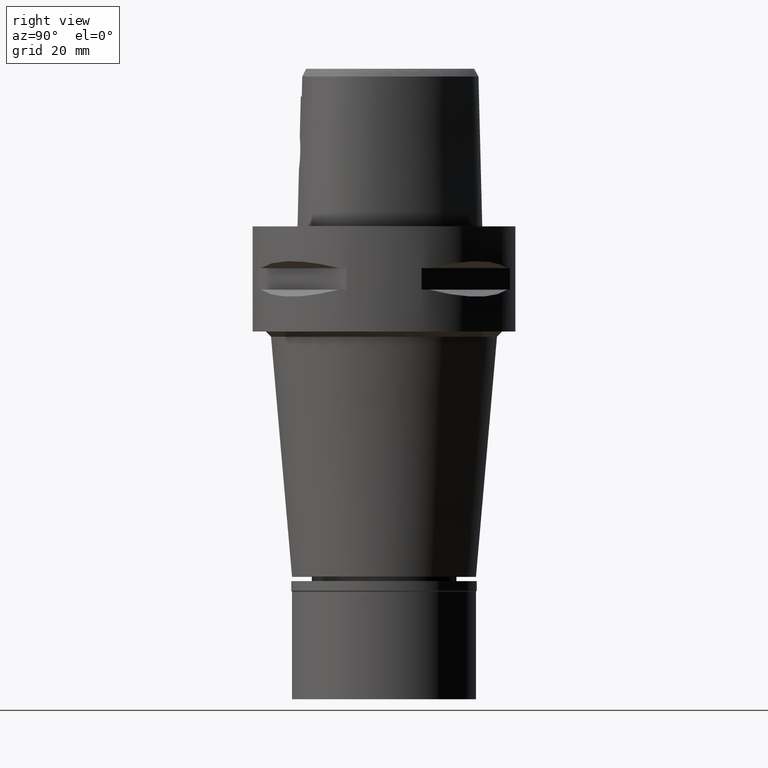
[diagram: clean part render]
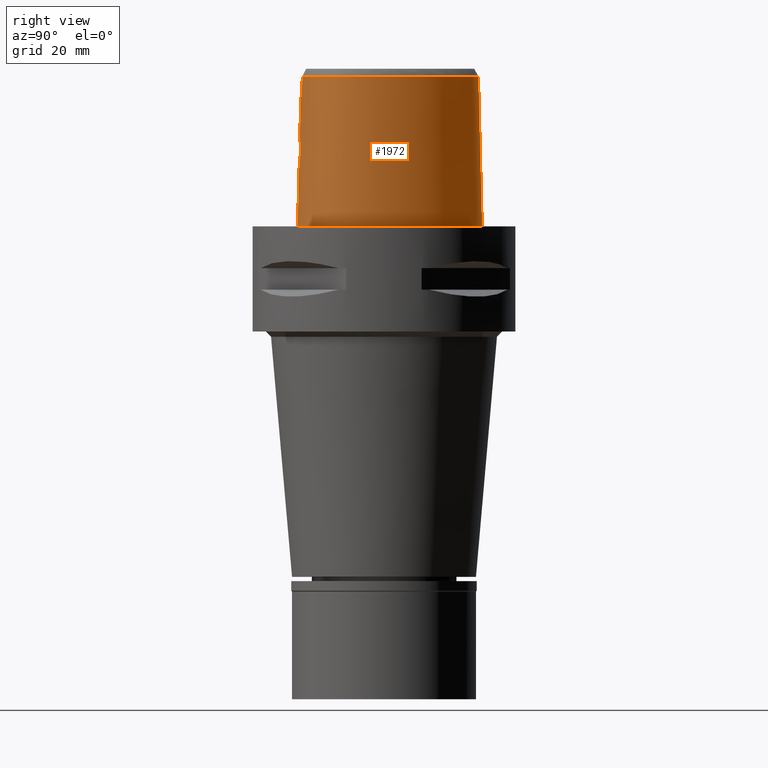
[diagram: same view with one face highlighted and labeled with its STEP entity id]
A machine part, right view. The second image highlights one B-rep face of the part: STEP entity #1972.
In plain terms, the highlighted face is a freeform B-spline surface patch.
Its self-contained STEP definition (entity closure, byte-faithful):
#44 = CARTESIAN_POINT ( 'NONE',  ( 16.06260381016999972, 3.539545240268000104, 19.20397109799000290 ) ) ;
#70 = CARTESIAN_POINT ( 'NONE',  ( 17.72574106728999865, -3.269125760247999946, -0.5704149831085000288 ) ) ;
#98 = CARTESIAN_POINT ( 'NONE',  ( 7.822764680713000907, 15.64590996779000065, 9.316778057439000449 ) ) ;
#104 = EDGE_CURVE ( 'NONE', #3801, #2820, #2988, .T. ) ;
#120 = CARTESIAN_POINT ( 'NONE',  ( 7.668807555354000272, 15.44980294381999997, 19.20397109799000290 ) ) ;
#134 = CARTESIAN_POINT ( 'NONE',  ( 2.744096643845213901, -16.00346064512505606, 12.66698413764603970 ) ) ;
#142 = CARTESIAN_POINT ( 'NONE',  ( 4.416345101437999965, 17.06979537145000236, 29.09116413853000083 ) ) ;
#147 = CARTESIAN_POINT ( 'NONE',  ( 3.213444788215948034, -15.61774735051721308, 25.97357128944999971 ) ) ;
#161 = CARTESIAN_POINT ( 'NONE',  ( 2.709953204667775228, -16.00846021379442519, 12.59958595632848422 ) ) ;
#209 = CARTESIAN_POINT ( 'NONE',  ( 1.306758668653756894, -16.14399373876910460, 11.23972581488055589 ) ) ;
#211 = ORIENTED_EDGE ( 'NONE', *, *, #786, .T. ) ;
#232 = CARTESIAN_POINT ( 'NONE',  ( 4.922186712268000086, -15.43572471317999906, 29.09116413853000083 ) ) ;
#238 = CARTESIAN_POINT ( 'NONE',  ( 1.120763508485726589, -16.15358090583466222, 11.16333240776539171 ) ) ;
#260 = CARTESIAN_POINT ( 'NONE',  ( 1.286803344601999965, -15.75925545528999905, 29.09116413853000083 ) ) ;
#263 = CARTESIAN_POINT ( 'NONE',  ( 2.883981873338817170, -15.93080840504316953, 14.99485968243840972 ) ) ;
#285 = CARTESIAN_POINT ( 'NONE',  ( 0.7741482008191989950, -16.02257322970520903, 16.98085959781949938 ) ) ;
#286 = CARTESIAN_POINT ( 'NONE',  ( -2.099947044190000333E-11, -16.45500000000000185, 1.700491599383999771E-13 ) ) ;
#304 = CARTESIAN_POINT ( 'NONE',  ( 14.25868460834000118, -10.78027775764999951, 29.09116413853000083 ) ) ;
#330 = CARTESIAN_POINT ( 'NONE',  ( 13.36241655669000039, -12.29868522780000006, 9.316778057439000449 ) ) ;
#332 = CARTESIAN_POINT ( 'NONE',  ( 3.032153927794988935, -15.93034332000362419, 14.38503233290865424 ) ) ;
#349 = CARTESIAN_POINT ( 'NONE',  ( 16.70311393326999649, -7.028822804605000307, 19.20397109799000290 ) ) ;
#412 = CARTESIAN_POINT ( 'NONE',  ( 0.4768940199510999789, 18.48195206863000095, 9.316778057439000449 ) ) ;
#413 = VERTEX_POINT ( 'NONE', #967 ) ;
#415 = DIRECTION ( 'NONE',  ( 3.841700118800888517E-12, 0.02499051285785929000, -0.9996876883642715761 ) ) ;
#428 = ORIENTED_EDGE ( 'NONE', *, *, #4589, .F. ) ;
#457 = CARTESIAN_POINT ( 'NONE',  ( 15.82879716901000222, 3.455165066940999896, 29.09116413853000083 ) ) ;
#482 = CARTESIAN_POINT ( 'NONE',  ( 7.976721806072998966, 15.84201699175999778, -0.5704149831085000288 ) ) ;
#487 = CARTESIAN_POINT ( 'NONE',  ( 16.85489147434688206, -5.354527548487546085, 28.52071728562186692 ) ) ;
#502 = CARTESIAN_POINT ( 'NONE',  ( 17.22987906264999936, -3.272349404998999844, 19.20397109799000290 ) ) ;
#514 = CARTESIAN_POINT ( 'NONE',  ( 1.979050802151743005, -16.09313883417978275, 11.67852903115555740 ) ) ;
#529 = CARTESIAN_POINT ( 'NONE',  ( 15.07117004567362351, -9.793013887526788253, 28.52071728562186692 ) ) ;
#570 = CARTESIAN_POINT ( 'NONE',  ( 3.014162081768897661, -15.95399573205362032, 13.52323755265706851 ) ) ;
#625 = CARTESIAN_POINT ( 'NONE',  ( 2.951306861662620129, -15.92924742299003960, 14.77626636585412001 ) ) ;
#644 = CARTESIAN_POINT ( 'NONE',  ( 11.57144723442000078, -13.50085874036000000, 9.316778057439000449 ) ) ;
#687 = CARTESIAN_POINT ( 'NONE',  ( 4.965998056554999707, -15.68039670609000247, 19.20397109799000290 ) ) ;
#692 = CARTESIAN_POINT ( 'NONE',  ( 2.824468722466921378, -15.93300016794371388, 15.15105085638172611 ) ) ;
#716 = CARTESIAN_POINT ( 'NONE',  ( 17.33218217195000221, -5.422849665259000140, 9.316778057439000449 ) ) ;
#759 = CARTESIAN_POINT ( 'NONE',  ( 2.040572359773544786, 18.55015626007492457, -4.092413169139771240E-07 ) ) ;
#776 = CARTESIAN_POINT ( 'NONE',  ( 0.4511781563623000202, 17.98656507930999737, 29.09116413853000083 ) ) ;
#786 = EDGE_CURVE ( 'NONE', #799, #2983, #984, .T. ) ;
#791 = EDGE_CURVE ( 'NONE', #413, #4428, #3048, .T. ) ;
#799 = VERTEX_POINT ( 'NONE', #4471 ) ;
#805 = CARTESIAN_POINT ( 'NONE',  ( -0.5293534872135999825, 17.95181534095999965, 29.09116413853000083 ) ) ;
#812 = CARTESIAN_POINT ( 'NONE',  ( 6.797789558564080774E-08, -15.96503292052179823, 19.60000012629467392 ) ) ;
#826 = CARTESIAN_POINT ( 'NONE',  ( -0.3630720982687000165, 18.20950115322000329, 19.20397109799000290 ) ) ;
#850 = CARTESIAN_POINT ( 'NONE',  ( 2.043508294530000047, 18.56419797690000451, -0.5704149831085000288 ) ) ;
#878 = CARTESIAN_POINT ( 'NONE',  ( 4.628819212283000084, 17.52182784772000090, 9.316778057439000449 ) ) ;
#881 = CARTESIAN_POINT ( 'NONE',  ( 5.902447799197345191, -15.16907841529213918, 28.52071728562186692 ) ) ;
#919 = EDGE_LOOP ( 'NONE', ( #428, #4028, #2835, #4191, #3082, #3013, #970, #211 ) ) ;
#930 = CARTESIAN_POINT ( 'NONE',  ( 11.33338046474596439, -13.08225241901946490, 28.52071728562186692 ) ) ;
#949 = CARTESIAN_POINT ( 'NONE',  ( 2.957688824804170835, -15.96752846870872666, 13.22897551199208444 ) ) ;
#967 = CARTESIAN_POINT ( 'NONE',  ( 2.030224829794000080E-07, -15.83752876601000281, 24.70000006102999990 ) ) ;
#970 = ORIENTED_EDGE ( 'NONE', *, *, #4175, .T. ) ;
#971 = CARTESIAN_POINT ( 'NONE',  ( 0.1898211197316536092, -16.18126839359000257, 10.94999999999999751 ) ) ;
#984 = B_SPLINE_CURVE_WITH_KNOTS ( 'NONE', 3,
 ( #286, #4752, #1369, #2881, #1796, #1420, #3700, #4431, #1048, #2274, #1190, #1913, #2325, #1890, #4206, #1092, #3453, #2672, #4524, #759, #4133, #1563 ),
 .UNSPECIFIED., .F., .F.,
 ( 4, 1, 1, 1, 1, 1, 1, 1, 1, 1, 1, 1, 1, 1, 1, 1, 1, 1, 1, 4 ),
 ( 0.0000000000000000000, 0.08333333333356000849, 0.1666666666668000230, 0.2083333333334000115, 0.2500000000000000000, 0.2916666666666000163, 0.3124999999998999689, 0.3333333333332000326, 0.3541666666665000407, 0.3749999999997999933, 0.4166666666665000407, 0.4583333333330000259, 0.4999999999995999866, 0.5833333333328000192, 0.6666666666660999718, 0.7499999999993000044, 0.8333333333325000369, 0.9166666666657000695, 0.9583333333322999747, 1.000000000000000000 ),
 .UNSPECIFIED. ) ;
#994 = CARTESIAN_POINT ( 'NONE',  ( 2.164021906619611801, -15.96736812113673487, 16.14931344321802698 ) ) ;
#1021 = CARTESIAN_POINT ( 'NONE',  ( 2.180887052763815337, -15.96648089881372989, 16.13220278528724094 ) ) ;
#1043 = CARTESIAN_POINT ( 'NONE',  ( 14.79871908233999989, -11.29217324556000079, -0.5704149831085000288 ) ) ;
#1047 = CARTESIAN_POINT ( 'NONE',  ( 2.232748692361829157, -15.96374470980125082, 16.07819212816551513 ) ) ;
#1048 = CARTESIAN_POINT ( 'NONE',  ( 16.20602472851325970, -9.356552739500257232, -4.092413169139771240E-07 ) ) ;
#1064 = CARTESIAN_POINT ( 'NONE',  ( 1.321318947253999898, -16.50155085332000127, -0.5704149831085000288 ) ) ;
#1068 = CARTESIAN_POINT ( 'NONE',  ( 3.050149896193001364, -15.93316336324772386, 14.18941404704232490 ) ) ;
#1086 = CARTESIAN_POINT ( 'NONE',  ( 16.68217932776000012, -8.451606619630000594, -0.5704149831085000288 ) ) ;
#1091 = CARTESIAN_POINT ( 'NONE',  ( 1.859549321997236992, -15.98255794229956628, 16.41807320997656561 ) ) ;
#1092 = CARTESIAN_POINT ( 'NONE',  ( 14.38008120580503224, 8.302343755140773496, -4.092413169139771240E-07 ) ) ;
#1177 = CARTESIAN_POINT ( 'NONE',  ( 17.47781006497000078, -3.270737582623000073, 9.316778057439000449 ) ) ;
#1178 = VECTOR ( 'NONE', #2212, 1000.000000000000114 ) ;
#1190 = CARTESIAN_POINT ( 'NONE',  ( 17.16495052764897267, -7.165908206046881723, -4.092413169139771240E-07 ) ) ;
#1202 = CARTESIAN_POINT ( 'NONE',  ( 1.890839577661999948, 17.83402817812000052, 29.09116413853000083 ) ) ;
#1223 = CARTESIAN_POINT ( 'NONE',  ( 14.39249255842999986, 8.309508952293001016, -0.5704149831085000288 ) ) ;
#1226 = CARTESIAN_POINT ( 'NONE',  ( 4.422474504766046977, 17.08283549833119608, 28.52071728562186692 ) ) ;
#1245 = CARTESIAN_POINT ( 'NONE',  ( -0.5743166387467999456, 18.69191974542000168, -0.5704149831085000288 ) ) ;
#1249 = CARTESIAN_POINT ( 'NONE',  ( 8.702202469521795436, -14.36510984286243797, 28.52071728562186692 ) ) ;
#1267 = CARTESIAN_POINT ( 'NONE',  ( 3.235096591086000117, -15.64751801257999908, 24.70000006080999810 ) ) ;
#1277 = CARTESIAN_POINT ( 'NONE',  ( 3.168920890822999770, -15.55911073834000113, 28.52071374672999582 ) ) ;
#1296 = EDGE_CURVE ( 'NONE', #3801, #413, #4001, .T. ) ;
#1310 = CARTESIAN_POINT ( 'NONE',  ( 2.223227574825688890, -16.06911398227925147, 11.90960399256265134 ) ) ;
#1334 = CARTESIAN_POINT ( 'NONE',  ( -3.009969613578000157E-11, 17.98202997909999823, 28.52071728569000086 ) ) ;
#1339 = CARTESIAN_POINT ( 'NONE',  ( 3.044506884776514433, -15.94333381584075582, 13.81108558313461110 ) ) ;
#1368 = CARTESIAN_POINT ( 'NONE',  ( 2.147962331140050196, -16.07679769526338021, 11.83463701146479075 ) ) ;
#1369 = CARTESIAN_POINT ( 'NONE',  ( 5.051093169386433601, -16.15562501012858476, -4.092413169139771240E-07 ) ) ;
#1388 = CARTESIAN_POINT ( 'NONE',  ( -0.7074880616520999865, -15.72098075040999632, 29.09116413853000083 ) ) ;
#1414 = CARTESIAN_POINT ( 'NONE',  ( 11.32630876774000050, -13.06981785256000173, 29.09116413853000083 ) ) ;
#1419 = CARTESIAN_POINT ( 'NONE',  ( 2.262444582314412145, -15.96216938760131754, 16.04565077979857080 ) ) ;
#1420 = CARTESIAN_POINT ( 'NONE',  ( 13.50690094114342621, -12.48264649245455971, -4.092413169139771240E-07 ) ) ;
#1441 = CARTESIAN_POINT ( 'NONE',  ( 15.25987586200999857, -9.930205206822000363, 19.20397109799000290 ) ) ;
#1444 = B_SPLINE_CURVE_WITH_KNOTS ( 'NONE', 3,
 ( #3529, #971, #2086, #3580, #1697, #3555, #2798, #4303, #238, #3260, #4751, #4329, #209, #1747, #1673, #3202, #4694, #514, #3228, #2482, #3177, #2429, #4645, #1368, #1310, #3606, #3915, #4377, #3968, #2821, #161, #134, #1641, #3147, #4672, #2776, #949, #570, #4282, #4723, #1339, #2136, #4452, #1068, #332, #3750, #625, #3657, #263, #1826, #4797, #4844, #692, #2935, #1773, #2977, #2600, #4430, #2573, #2903, #1419, #1047, #4113, #1021, #2506, #994, #2957, #4044, #3728, #1091, #1446, #4086, #2553, #2208, #4017, #1467, #4772, #1848, #285, #3285, #4065 ),
 .UNSPECIFIED., .F., .F.,
 ( 4, 2, 2, 1, 1, 1, 2, 2, 2, 2, 2, 1, 1, 2, 2, 2, 2, 2, 1, 2, 2, 2, 2, 2, 2, 2, 2, 1, 1, 1, 2, 2, 2, 2, 2, 1, 1, 2, 2, 2, 2, 2, 2, 2, 2, 4 ),
 ( 0.0000000000000000000, 0.06249999999999249212, 0.09374999999998873124, 0.1093749999999868439, 0.1171874999999859140, 0.1210937499999853589, 0.1230468749999851785, 0.1249999999999849842, 0.1874999999999826805, 0.2187499999999815148, 0.2343749999999809874, 0.2421874999999808487, 0.2460937499999807654, 0.2480468749999807376, 0.2499999999999807376, 0.2812499999999806821, 0.3124999999999806821, 0.3437499999999806266, 0.3593749999999806266, 0.3671874999999803491, 0.3749999999999800715, 0.4374999999999770739, 0.4687499999999756306, 0.4843749999999751310, 0.4999999999999745759, 0.5624999999999720224, 0.5937499999999705791, 0.6093749999999700240, 0.6171874999999699130, 0.6210937499999696909, 0.6230468749999695799, 0.6249999999999694689, 0.6874999999999721334, 0.7187499999999732436, 0.7343749999999737987, 0.7421874999999745759, 0.7460937499999750200, 0.7480468749999749090, 0.7499999999999746869, 0.7812499999999785727, 0.7968749999999801270, 0.8124999999999816813, 0.8437499999999847899, 0.8593749999999861222, 0.8749999999999874545, 1.000000000000000000 ),
 .UNSPECIFIED. ) ;
#1446 = CARTESIAN_POINT ( 'NONE',  ( 1.779262221764184249, -15.98633376436653108, 16.47774649146144554 ) ) ;
#1463 = CARTESIAN_POINT ( 'NONE',  ( 15.78948609236000067, -9.116064045091000878, 19.20397109799000290 ) ) ;
#1467 = CARTESIAN_POINT ( 'NONE',  ( 1.354452607727719471, -16.00396228356807526, 16.73322745257438982 ) ) ;
#1478 = VERTEX_POINT ( 'NONE', #4547 ) ;
#1485 = CARTESIAN_POINT ( 'NONE',  ( 16.22974790713000104, -8.250337555777999654, 19.20397109799000290 ) ) ;
#1550 = CARTESIAN_POINT ( 'NONE',  ( 16.53021709249000182, 3.708305586923000163, -0.5704149831085000288 ) ) ;
#1563 = CARTESIAN_POINT ( 'NONE',  ( 7.950257691411000298E-11, 18.69499999997999851, 1.688279146112999860E-13 ) ) ;
#1580 = CARTESIAN_POINT ( 'NONE',  ( 17.26695525566999834, -0.2694874902618000223, 9.316778057439000449 ) ) ;
#1628 = CARTESIAN_POINT ( 'NONE',  ( 0.4640360881566999995, 18.23425857396999916, 19.20397109799000290 ) ) ;
#1631 = CARTESIAN_POINT ( 'NONE',  ( 16.47905536661016512, -6.962316254603442722, 28.52071728562186692 ) ) ;
#1641 = CARTESIAN_POINT ( 'NONE',  ( 2.775961287962938506, -15.99857004330712229, 12.73620107527709600 ) ) ;
#1644 = VERTEX_POINT ( 'NONE', #1334 ) ;
#1656 = CARTESIAN_POINT ( 'NONE',  ( 0.6295828025434362374, 17.98202997637834955, 28.52071728562186692 ) ) ;
#1673 = CARTESIAN_POINT ( 'NONE',  ( 1.719191830005427191, -16.11523926597614675, 11.47872671522449473 ) ) ;
#1697 = CARTESIAN_POINT ( 'NONE',  ( 0.7748558813734508499, -16.16821842566323042, 11.04831638025727614 ) ) ;
#1741 = CARTESIAN_POINT ( 'NONE',  ( 8.951632343383998602, -15.05250172444999990, -0.5704149831085000288 ) ) ;
#1747 = CARTESIAN_POINT ( 'NONE',  ( 1.466707760567599550, -16.13401281180740199, 11.31839107164914182 ) ) ;
#1773 = CARTESIAN_POINT ( 'NONE',  ( 2.759961640973259467, -15.93564958624567929, 15.30749493561488173 ) ) ;
#1796 = CARTESIAN_POINT ( 'NONE',  ( 11.68694517090980867, -13.70394532141715338, -4.092413169139771240E-07 ) ) ;
#1821 = CARTESIAN_POINT ( 'NONE',  ( 15.66039569940999954, -10.22138777850999958, -0.5704149831085000288 ) ) ;
#1826 = CARTESIAN_POINT ( 'NONE',  ( 2.852909278454516251, -15.93189406616820847, 15.07915126970513953 ) ) ;
#1848 = CARTESIAN_POINT ( 'NONE',  ( 1.217867162102865830, -16.00861105600193213, 16.79681041045230572 ) ) ;
#1865 = CARTESIAN_POINT ( 'NONE',  ( 15.57503056149000109, -8.992248086250999251, 29.09116413853000083 ) ) ;
#1890 = CARTESIAN_POINT ( 'NONE',  ( 17.49754713320569977, -0.2285937482037112278, -4.092413169139771240E-07 ) ) ;
#1913 = CARTESIAN_POINT ( 'NONE',  ( 17.56373943949967398, -5.455996095205096097, -4.092413169139771240E-07 ) ) ;
#1924 = CARTESIAN_POINT ( 'NONE',  ( -0.3829342216691000167, 18.70352949967000100, -0.5704149831085000288 ) ) ;
#1945 = CARTESIAN_POINT ( 'NONE',  ( 16.84071370731999906, -5.352498061930999640, 29.09116413853000083 ) ) ;
#1972 = ADVANCED_FACE ( 'NONE', ( #3674 ), #2171, .T. ) ;
#1973 = CARTESIAN_POINT ( 'NONE',  ( 13.74710175889000041, 7.936918433065000222, 29.09116413853000083 ) ) ;
#1998 = CARTESIAN_POINT ( 'NONE',  ( 16.98194806033000148, -3.273961227375000060, 29.09116413853000083 ) ) ;
#2001 = CARTESIAN_POINT ( 'NONE',  ( 16.79165444019614739, -0.3537785292841507112, 28.52071728562186692 ) ) ;
#2019 = CARTESIAN_POINT ( 'NONE',  ( 11.47659489054000126, 12.46143685312999949, -0.5704149831085000288 ) ) ;
#2027 = CARTESIAN_POINT ( 'NONE',  ( 3.168920890822999770, -15.55911073834000113, 28.52071374672999582 ) ) ;
#2049 = CARTESIAN_POINT ( 'NONE',  ( 3.168920890822999770, -15.55911073834000113, 28.52071374672999582 ) ) ;
#2086 = CARTESIAN_POINT ( 'NONE',  ( 0.3842297570296561160, -16.17878268541347353, 10.96777226348764600 ) ) ;
#2136 = CARTESIAN_POINT ( 'NONE',  ( 3.048883421515428349, -15.94046337244651923, 13.90502257973829003 ) ) ;
#2155 = CARTESIAN_POINT ( 'NONE',  ( -1.079551357071999895, -16.20136632400999943, 9.316778057439000449 ) ) ;
#2171 = B_SPLINE_SURFACE_WITH_KNOTS ( 'NONE', 3, 3, ( 
 ( #3302, #2155, #4040, #2176 ),
 ( #2975, #3724, #4373, #1388 ),
 ( #1064, #3696, #2877, #260 ),
 ( #2900, #4468, #687, #232 ),
 ( #1741, #2202, #4396, #4823 ),
 ( #2528, #644, #2952, #1414 ),
 ( #2928, #330, #4062, #4425 ),
 ( #1043, #4448, #2550, #304 ),
 ( #1821, #3331, #1441, #2570 ),
 ( #3353, #4841, #1463, #1865 ),
 ( #1086, #3748, #1485, #3373 ),
 ( #2998, #4862, #349, #4111 ),
 ( #2594, #716, #2229, #1945 ),
 ( #70, #1177, #502, #1998 ),
 ( #4585, #1580, #3808, #3829 ),
 ( #1550, #3059, #44, #457 ),
 ( #1223, #3444, #3495, #1973 ),
 ( #2019, #3518, #3901, #3879 ),
 ( #482, #98, #120, #4198 ),
 ( #3464, #878, #3538, #142 ),
 ( #850, #2758, #2317, #1202 ),
 ( #4625, #412, #1628, #776 ),
 ( #1924, #3132, #826, #2732 ),
 ( #1245, #4607, #2340, #805 ) ),
 .UNSPECIFIED., .F., .F., .F.,
 ( 4, 1, 1, 1, 1, 1, 1, 1, 1, 1, 1, 1, 1, 1, 1, 1, 1, 1, 1, 1, 1, 4 ),
 ( 4, 4 ),
 ( -0.01796851319151000076, 0.0000000000000000000, 0.08333333333356000849, 0.1666666666668000230, 0.2083333333334000115, 0.2500000000000000000, 0.2916666666666000163, 0.3124999999998999689, 0.3333333333332000326, 0.3541666666665000407, 0.3749999999997999933, 0.4166666666665000407, 0.4583333333330000259, 0.4999999999995999866, 0.5833333333328000192, 0.6666666666660999718, 0.7499999999993000044, 0.8333333333325000369, 0.9166666666657000695, 0.9583333333322999747, 1.000000000000000000, 1.011711214084999977 ),
 ( -8.523015300466000007E-09, 1.000000434673999905 ),
 .UNSPECIFIED. ) ;
#2176 = CARTESIAN_POINT ( 'NONE',  ( -1.060560745279999884, -15.70738051947000180, 29.09116413853000083 ) ) ;
#2202 = CARTESIAN_POINT ( 'NONE',  ( 8.866858698611999046, -14.81887808391999961, 9.316778057439000449 ) ) ;
#2208 = CARTESIAN_POINT ( 'NONE',  ( 1.531589067142498539, -15.99732691922906724, 16.63945844436470267 ) ) ;
#2212 = DIRECTION ( 'NONE',  ( -1.678645996367960835E-12, -0.02499051295371941192, -0.9996876883618752707 ) ) ;
#2229 = CARTESIAN_POINT ( 'NONE',  ( 17.08644793963999930, -5.387673863595000334, 19.20397109799000290 ) ) ;
#2246 = LINE ( 'NONE', #3468, #4651 ) ;
#2274 = CARTESIAN_POINT ( 'NONE',  ( 16.66912843075925821, -8.445800785415022105, -4.092413169139771240E-07 ) ) ;
#2317 = CARTESIAN_POINT ( 'NONE',  ( 1.941729149950999878, 18.07741811105000096, 19.20397109799000290 ) ) ;
#2325 = CARTESIAN_POINT ( 'NONE',  ( 17.71143736587981365, -3.269218749933689327, -4.092413169139771240E-07 ) ) ;
#2340 = CARTESIAN_POINT ( 'NONE',  ( -0.5443412043912999598, 18.19851680912000091, 19.20397109799000290 ) ) ;
#2377 = CARTESIAN_POINT ( 'NONE',  ( 2.030224829794000080E-07, -15.83752876601000281, 24.70000006102999990 ) ) ;
#2397 = CARTESIAN_POINT ( 'NONE',  ( 3.738627708319397502, -15.49270856215321679, 28.52071728562186692 ) ) ;
#2398 = CARTESIAN_POINT ( 'NONE',  ( 3.235096591086000117, -15.64751801257999908, 24.70000006080999810 ) ) ;
#2420 = CARTESIAN_POINT ( 'NONE',  ( 3.235096591086000117, -15.64751801257999908, 24.70000006080999810 ) ) ;
#2429 = CARTESIAN_POINT ( 'NONE',  ( 2.130834279644791440, -16.07853149005615023, 11.81777582520527936 ) ) ;
#2430 = EDGE_CURVE ( 'NONE', #1478, #4428, #1444, .T. ) ;
#2441 = B_SPLINE_CURVE_WITH_KNOTS ( 'NONE', 3,
 ( #4292, #1656, #3926, #1226, #3521, #3883, #2808, #3115, #2001, #2786, #487, #1631, #2763, #3980, #529, #4629, #3954, #930, #1249, #881, #2397, #2049 ),
 .UNSPECIFIED., .F., .F.,
 ( 4, 1, 1, 1, 1, 1, 1, 1, 1, 1, 1, 1, 1, 1, 1, 1, 1, 1, 1, 4 ),
 ( 0.0000000000000000000, 0.04404152929334257532, 0.08808305858552231693, 0.1761661171698820638, 0.2642491757542417830, 0.3523322343386015021, 0.4404152929230668589, 0.5284983515074266336, 0.5725398807996064932, 0.6165814100916805485, 0.6606229393839662123, 0.6826437040300560311, 0.7046644686761459608, 0.7266852333222358906, 0.7487059979683258204, 0.7927475272605056800, 0.8367890565526855395, 0.8808305858448653991, 0.9689136444292674177, 1.000000000000000000 ),
 .UNSPECIFIED. ) ;
#2482 = CARTESIAN_POINT ( 'NONE',  ( 2.076784380856327772, -16.08390063340897314, 11.76594178763888010 ) ) ;
#2506 = CARTESIAN_POINT ( 'NONE',  ( 2.170299400654049027, -15.96703807926082597, 16.14297866672072246 ) ) ;
#2528 = CARTESIAN_POINT ( 'NONE',  ( 11.69401646775999914, -13.71637918426000091, -0.5704149831085000288 ) ) ;
#2550 = CARTESIAN_POINT ( 'NONE',  ( 14.43869609967999956, -10.95090958695999994, 19.20397109799000290 ) ) ;
#2553 = CARTESIAN_POINT ( 'NONE',  ( 1.616099766049515107, -15.99381337938741332, 16.58846643699800083 ) ) ;
#2570 = CARTESIAN_POINT ( 'NONE',  ( 15.05961594332000075, -9.784613920976001467, 29.09116413853000083 ) ) ;
#2573 = CARTESIAN_POINT ( 'NONE',  ( 2.356615372638850125, -15.95714923954085585, 15.93698914121854671 ) ) ;
#2594 = CARTESIAN_POINT ( 'NONE',  ( 17.57791640427000246, -5.458025466921999858, -0.5704149831085000288 ) ) ;
#2600 = CARTESIAN_POINT ( 'NONE',  ( 2.520317714005605225, -15.94834054842958793, 15.72060082174885132 ) ) ;
#2601 = CARTESIAN_POINT ( 'NONE',  ( 0.0000000000000000000, -16.02877864023999877, 17.05000000000000071 ) ) ;
#2672 = CARTESIAN_POINT ( 'NONE',  ( 7.967839670597755664, 15.83070313310956934, -4.092413169139771240E-07 ) ) ;
#2732 = CARTESIAN_POINT ( 'NONE',  ( -0.3531410365684999886, 17.96248698000000132, 29.09116413853000083 ) ) ;
#2758 = CARTESIAN_POINT ( 'NONE',  ( 1.992618722240999896, 18.32080804398000140, 9.316778057439000449 ) ) ;
#2763 = CARTESIAN_POINT ( 'NONE',  ( 16.01658383235454508, -8.155509186612755812, 28.52071728562186692 ) ) ;
#2767 = CARTESIAN_POINT ( 'NONE',  ( 2.169052010909937156, -15.77399788591446850, 24.70000016056458847 ) ) ;
#2776 = CARTESIAN_POINT ( 'NONE',  ( 2.899217746531571827, -15.97873758491098073, 13.02871175161756234 ) ) ;
#2786 = CARTESIAN_POINT ( 'NONE',  ( 16.99625257116860411, -3.273868232427084468, 28.52071728562186692 ) ) ;
#2798 = CARTESIAN_POINT ( 'NONE',  ( 0.9939297242844374880, -16.15959612542589241, 11.11569146158231014 ) ) ;
#2808 = CARTESIAN_POINT ( 'NONE',  ( 13.75951381385775996, 7.944084035686641343, 28.52071728562186692 ) ) ;
#2820 = VERTEX_POINT ( 'NONE', #2027 ) ;
#2821 = CARTESIAN_POINT ( 'NONE',  ( 2.638828814086502383, -16.01860464026841413, 12.46732066277610862 ) ) ;
#2835 = ORIENTED_EDGE ( 'NONE', *, *, #104, .F. ) ;
#2877 = CARTESIAN_POINT ( 'NONE',  ( 1.298308545485999943, -16.00668725462999831, 19.20397109799000290 ) ) ;
#2881 = CARTESIAN_POINT ( 'NONE',  ( 8.946741559694485701, -15.03902344716627226, -4.092413169139771240E-07 ) ) ;
#2900 = CARTESIAN_POINT ( 'NONE',  ( 5.053620745127998859, -16.16974069189999952, -0.5704149831085000288 ) ) ;
#2903 = CARTESIAN_POINT ( 'NONE',  ( 2.320231428406520191, -15.95909571851455233, 15.98050410814317424 ) ) ;
#2928 = CARTESIAN_POINT ( 'NONE',  ( 13.51574691712999865, -12.49390941845000036, -0.5704149831085000288 ) ) ;
#2935 = CARTESIAN_POINT ( 'NONE',  ( 2.821425036078518467, -15.93312409536605578, 15.15848376097718031 ) ) ;
#2952 = CARTESIAN_POINT ( 'NONE',  ( 11.44887800108000064, -13.28533829645999909, 19.20397109799000290 ) ) ;
#2957 = CARTESIAN_POINT ( 'NONE',  ( 2.088968113521979753, -15.97131126311716898, 16.22457167555463542 ) ) ;
#2975 = CARTESIAN_POINT ( 'NONE',  ( -0.7264497210150000495, -16.46229666708999773, -0.5704149831085000288 ) ) ;
#2977 = CARTESIAN_POINT ( 'NONE',  ( 2.681016418395044898, -15.93974068711152547, 15.46783011061541302 ) ) ;
#2983 = VERTEX_POINT ( 'NONE', #4637 ) ;
#2988 = B_SPLINE_CURVE_WITH_KNOTS ( 'NONE', 3,
 ( #2398, #147, #3167, #1277 ),
 .UNSPECIFIED., .F., .F.,
 ( 4, 4 ),
 ( 0.0000000000000000000, 1.000000000000000000 ),
 .UNSPECIFIED. ) ;
#2998 = CARTESIAN_POINT ( 'NONE',  ( 17.17866843615999883, -7.169980046645999749, -0.5704149831085000288 ) ) ;
#3013 = ORIENTED_EDGE ( 'NONE', *, *, #2430, .F. ) ;
#3048 = B_SPLINE_CURVE_WITH_KNOTS ( 'NONE', 3,
 ( #3837, #3404, #812, #2601 ),
 .UNSPECIFIED., .F., .F.,
 ( 4, 4 ),
 ( 0.0000000000000000000, 1.000000000000000000 ),
 .UNSPECIFIED. ) ;
#3059 = CARTESIAN_POINT ( 'NONE',  ( 16.29641045132999722, 3.623925413595000311, 9.316778057439000449 ) ) ;
#3082 = ORIENTED_EDGE ( 'NONE', *, *, #791, .T. ) ;
#3115 = CARTESIAN_POINT ( 'NONE',  ( 15.84228676733096641, 3.460033425849828870, 28.52071728562186692 ) ) ;
#3132 = CARTESIAN_POINT ( 'NONE',  ( -0.3730031599688999888, 18.45651532644999904, 9.316778057439000449 ) ) ;
#3147 = CARTESIAN_POINT ( 'NONE',  ( 2.796681338616599621, -15.99533385695102439, 12.78273984513034378 ) ) ;
#3167 = CARTESIAN_POINT ( 'NONE',  ( 3.191384142201736829, -15.58827398948734633, 27.24714251809000132 ) ) ;
#3177 = CARTESIAN_POINT ( 'NONE',  ( 2.114644142900159896, -16.08015782783995817, 11.80200641014588747 ) ) ;
#3202 = CARTESIAN_POINT ( 'NONE',  ( 1.805376232578070450, -16.10834772480095012, 11.53923680359284809 ) ) ;
#3228 = CARTESIAN_POINT ( 'NONE',  ( 2.044225401069980741, -16.08701963945120994, 11.73626748625383343 ) ) ;
#3260 = CARTESIAN_POINT ( 'NONE',  ( 1.138812104614844278, -16.15267061231297419, 11.17057442770713394 ) ) ;
#3277 = CARTESIAN_POINT ( 'NONE',  ( 0.0000000000000000000, -16.02877864023999877, 17.05000000000000071 ) ) ;
#3285 = CARTESIAN_POINT ( 'NONE',  ( 0.3724840145390415080, -16.02877864024000587, 17.04999999999999716 ) ) ;
#3302 = CARTESIAN_POINT ( 'NONE',  ( -1.089046662969000101, -16.44835922628000091, -0.5704149831085000288 ) ) ;
#3331 = CARTESIAN_POINT ( 'NONE',  ( 15.46013578071000083, -10.07579649266999944, 9.316778057439000449 ) ) ;
#3353 = CARTESIAN_POINT ( 'NONE',  ( 16.21839715411000071, -9.363695962769998715, -0.5704149831085000288 ) ) ;
#3373 = CARTESIAN_POINT ( 'NONE',  ( 16.00353219682000017, -8.149703023852998385, 29.09116413853000083 ) ) ;
#3404 = CARTESIAN_POINT ( 'NONE',  ( 6.782268596442595003E-08, -15.90128720080194391, 22.15000025258929028 ) ) ;
#3444 = CARTESIAN_POINT ( 'NONE',  ( 14.17736229192000152, 8.185312112550001018, 9.316778057439000449 ) ) ;
#3453 = CARTESIAN_POINT ( 'NONE',  ( 11.46563508809787635, 12.45218750664109209, -4.092413169139771240E-07 ) ) ;
#3464 = CARTESIAN_POINT ( 'NONE',  ( 4.735056267705000543, 17.74784408584999795, -0.5704149831085000288 ) ) ;
#3468 = CARTESIAN_POINT ( 'NONE',  ( -3.009969613578000157E-11, 17.98202997909999823, 28.52071728569000086 ) ) ;
#3495 = CARTESIAN_POINT ( 'NONE',  ( 13.96223202539999875, 8.061115272806999243, 19.20397109799000290 ) ) ;
#3518 = CARTESIAN_POINT ( 'NONE',  ( 11.28662484525000131, 12.30111473230000030, 9.316778057439000449 ) ) ;
#3521 = CARTESIAN_POINT ( 'NONE',  ( 7.523733068099031307, 15.26501041873741826, 28.52071728562186692 ) ) ;
#3529 = CARTESIAN_POINT ( 'NONE',  ( -2.612554333772000266E-12, -16.18126839358999902, 10.94999999999999929 ) ) ;
#3538 = CARTESIAN_POINT ( 'NONE',  ( 4.522582156860000424, 17.29581160957999941, 19.20397109799000290 ) ) ;
#3555 = CARTESIAN_POINT ( 'NONE',  ( 0.9209982704608615789, -16.16262558226604895, 11.09193420934167129 ) ) ;
#3580 = CARTESIAN_POINT ( 'NONE',  ( 0.6770584128688731385, -16.17132556088388995, 11.02443681068121784 ) ) ;
#3606 = CARTESIAN_POINT ( 'NONE',  ( 2.290593162243966141, -16.06186194956454116, 11.98364703425937350 ) ) ;
#3657 = CARTESIAN_POINT ( 'NONE',  ( 2.907704111751937770, -15.93016185020670861, 14.92213459652817953 ) ) ;
#3674 = FACE_OUTER_BOUND ( 'NONE', #919, .T. ) ;
#3696 = CARTESIAN_POINT ( 'NONE',  ( 1.309813746370000143, -16.25411905398000201, 9.316778057439000449 ) ) ;
#3700 = CARTESIAN_POINT ( 'NONE',  ( 14.78833381144490389, -11.28232910862455363, -4.092413169139771240E-07 ) ) ;
#3724 = CARTESIAN_POINT ( 'NONE',  ( -0.7201291678940000551, -16.21519136152999607, 9.316778057439000449 ) ) ;
#3728 = CARTESIAN_POINT ( 'NONE',  ( 1.898958778535287273, -15.98067541706731731, 16.38724889510308103 ) ) ;
#3748 = CARTESIAN_POINT ( 'NONE',  ( 16.45596361744999925, -8.350972087704001012, 9.316778057439000449 ) ) ;
#3750 = CARTESIAN_POINT ( 'NONE',  ( 2.975249651912823534, -15.92914271478721844, 14.67846616982687102 ) ) ;
#3801 = VERTEX_POINT ( 'NONE', #1267 ) ;
#3808 = CARTESIAN_POINT ( 'NONE',  ( 17.02224551882000014, -0.3128849289070000372, 19.20397109799000290 ) ) ;
#3829 = CARTESIAN_POINT ( 'NONE',  ( 16.77753578197999929, -0.3562823675523000277, 29.09116413853000083 ) ) ;
#3837 = CARTESIAN_POINT ( 'NONE',  ( 2.030224829794000080E-07, -15.83752876601000281, 24.70000006102999990 ) ) ;
#3879 = CARTESIAN_POINT ( 'NONE',  ( 10.90668475468999965, 11.98047049064000014, 29.09116413853000083 ) ) ;
#3883 = CARTESIAN_POINT ( 'NONE',  ( 10.91764517733295214, 11.98972036053776158, 28.52071728562186692 ) ) ;
#3901 = CARTESIAN_POINT ( 'NONE',  ( 11.09665479997000048, 12.14079261146999933, 19.20397109799000290 ) ) ;
#3915 = CARTESIAN_POINT ( 'NONE',  ( 2.417729193041619151, -16.04731727844056266, 12.13798983179893654 ) ) ;
#3926 = CARTESIAN_POINT ( 'NONE',  ( 1.893775678555476460, 17.84807068954984999, 28.52071728562186692 ) ) ;
#3954 = CARTESIAN_POINT ( 'NONE',  ( 13.06460231237919700, -11.91950040983078196, 28.52071728562186692 ) ) ;
#3968 = CARTESIAN_POINT ( 'NONE',  ( 2.587629427706295893, -16.02556131009806606, 12.38252332209277462 ) ) ;
#3980 = CARTESIAN_POINT ( 'NONE',  ( 15.58740368722670055, -8.999391713746737409, 28.52071728562186692 ) ) ;
#4001 = B_SPLINE_CURVE_WITH_KNOTS ( 'NONE', 3,
 ( #2420, #2767, #4274, #2377 ),
 .UNSPECIFIED., .F., .F.,
 ( 4, 4 ),
 ( 0.0000000000000000000, 1.000000000000000000 ),
 .UNSPECIFIED. ) ;
#4017 = CARTESIAN_POINT ( 'NONE',  ( 1.399412083726095490, -16.00233608542867358, 16.71046994217811488 ) ) ;
#4028 = ORIENTED_EDGE ( 'NONE', *, *, #4698, .T. ) ;
#4040 = CARTESIAN_POINT ( 'NONE',  ( -1.070056051176000000, -15.95437342174000150, 19.20397109799000290 ) ) ;
#4044 = CARTESIAN_POINT ( 'NONE',  ( 2.014841840659067795, -15.97504399877426984, 16.29192479722133413 ) ) ;
#4062 = CARTESIAN_POINT ( 'NONE',  ( 13.20908619625000036, -12.10346103714000066, 19.20397109799000290 ) ) ;
#4065 = CARTESIAN_POINT ( 'NONE',  ( 0.0000000000000000000, -16.02877864023999877, 17.05000000000000071 ) ) ;
#4086 = CARTESIAN_POINT ( 'NONE',  ( 1.737183591012293027, -15.98828192606207388, 16.50739953107601821 ) ) ;
#4111 = CARTESIAN_POINT ( 'NONE',  ( 16.46533668182000198, -6.958244183584000098, 29.09116413853000083 ) ) ;
#4113 = CARTESIAN_POINT ( 'NONE',  ( 2.196663950529426312, -15.96564993910013364, 16.11602529263611316 ) ) ;
#4133 = CARTESIAN_POINT ( 'NONE',  ( 0.6801907866059707652, 18.69500001023170199, -4.092413169139771240E-07 ) ) ;
#4175 = EDGE_CURVE ( 'NONE', #1478, #799, #4868, .T. ) ;
#4191 = ORIENTED_EDGE ( 'NONE', *, *, #1296, .T. ) ;
#4198 = CARTESIAN_POINT ( 'NONE',  ( 7.514850429994999637, 15.25369591984999929, 29.09116413853000083 ) ) ;
#4206 = CARTESIAN_POINT ( 'NONE',  ( 16.51672825748519458, 3.703437503492815974, -4.092413169139771240E-07 ) ) ;
#4274 = CARTESIAN_POINT ( 'NONE',  ( 1.084489111474948642, -15.83754148653978433, 24.70000016056458847 ) ) ;
#4282 = CARTESIAN_POINT ( 'NONE',  ( 3.027798455715707604, -15.95003164277662755, 13.62032956274716788 ) ) ;
#4292 = CARTESIAN_POINT ( 'NONE',  ( -3.009969613578000157E-11, 17.98202997909999823, 28.52071728569000086 ) ) ;
#4303 = CARTESIAN_POINT ( 'NONE',  ( 1.078575942912804564, -16.15565394761469875, 11.14687127074684447 ) ) ;
#4329 = CARTESIAN_POINT ( 'NONE',  ( 1.158353828547649789, -16.15167258786863513, 11.17852165137646026 ) ) ;
#4373 = CARTESIAN_POINT ( 'NONE',  ( -0.7138086147730999809, -15.96808605596999797, 19.20397109799000290 ) ) ;
#4377 = CARTESIAN_POINT ( 'NONE',  ( 2.478737183293504120, -16.03986208745135755, 12.22013516387799825 ) ) ;
#4396 = CARTESIAN_POINT ( 'NONE',  ( 8.782085053840999578, -14.58525444339000110, 19.20397109799000290 ) ) ;
#4425 = CARTESIAN_POINT ( 'NONE',  ( 13.05575583581000032, -11.90823684647999947, 29.09116413853000083 ) ) ;
#4428 = VERTEX_POINT ( 'NONE', #3277 ) ;
#4430 = CARTESIAN_POINT ( 'NONE',  ( 2.459696765391574669, -15.95161770387217359, 15.80683248070965163 ) ) ;
#4431 = CARTESIAN_POINT ( 'NONE',  ( 15.64884225085089220, -10.21298828727616481, -4.092413169139771240E-07 ) ) ;
#4448 = CARTESIAN_POINT ( 'NONE',  ( 14.61870759100999884, -11.12154141625999948, 9.316778057439000449 ) ) ;
#4452 = CARTESIAN_POINT ( 'NONE',  ( 3.049961347112722265, -15.93921296701098278, 13.94964838113523342 ) ) ;
#4468 = CARTESIAN_POINT ( 'NONE',  ( 5.009809400842000215, -15.92506869898999788, 9.316778057439000449 ) ) ;
#4471 = CARTESIAN_POINT ( 'NONE',  ( -2.099947044190000333E-11, -16.45500000000000185, 1.700491599383999771E-13 ) ) ;
#4524 = CARTESIAN_POINT ( 'NONE',  ( 4.728927211212531567, 17.73480469685138061, -4.092413169139771240E-07 ) ) ;
#4526 = CARTESIAN_POINT ( 'NONE',  ( -2.612554333772000266E-12, -16.18126839358999902, 10.94999999999999929 ) ) ;
#4547 = CARTESIAN_POINT ( 'NONE',  ( -2.612554333772000266E-12, -16.18126839358999902, 10.94999999999999929 ) ) ;
#4585 = CARTESIAN_POINT ( 'NONE',  ( 17.51166499250999919, -0.2260900516166000074, -0.5704149831085000288 ) ) ;
#4589 = EDGE_CURVE ( 'NONE', #1644, #2983, #2246, .T. ) ;
#4607 = CARTESIAN_POINT ( 'NONE',  ( -0.5593289215690000482, 18.44521827727000129, 9.316778057439000449 ) ) ;
#4625 = CARTESIAN_POINT ( 'NONE',  ( 0.4897519517454999582, 18.72964556329000274, -0.5704149831085000288 ) ) ;
#4629 = CARTESIAN_POINT ( 'NONE',  ( 14.26907046692504544, -10.79012245165330519, 28.52071728562186692 ) ) ;
#4637 = CARTESIAN_POINT ( 'NONE',  ( 7.950257691411000298E-11, 18.69499999997999851, 1.688279146112999860E-13 ) ) ;
#4645 = CARTESIAN_POINT ( 'NONE',  ( 2.141618861871365187, -16.07744231414377367, 11.82835874812513310 ) ) ;
#4651 = VECTOR ( 'NONE', #415, 1000.000000000000114 ) ;
#4672 = CARTESIAN_POINT ( 'NONE',  ( 2.806282367902104724, -15.99380854387472795, 12.80500890572250761 ) ) ;
#4694 = CARTESIAN_POINT ( 'NONE',  ( 1.935527014321337447, -16.09705987419096829, 11.64218429699864465 ) ) ;
#4698 = EDGE_CURVE ( 'NONE', #1644, #2820, #2441, .T. ) ;
#4723 = CARTESIAN_POINT ( 'NONE',  ( 3.041209740384549498, -15.94490574327321575, 13.76368115324908459 ) ) ;
#4751 = CARTESIAN_POINT ( 'NONE',  ( 1.150837130457847746, -16.15205889506641057, 11.17544410961269108 ) ) ;
#4752 = CARTESIAN_POINT ( 'NONE',  ( 1.683697723123678269, -16.45500001022992009, -4.092413169139771240E-07 ) ) ;
#4772 = CARTESIAN_POINT ( 'NONE',  ( 1.262794661676007291, -16.00712763199256727, 16.77676499123158038 ) ) ;
#4797 = CARTESIAN_POINT ( 'NONE',  ( 2.836520581861567525, -15.93251973351802242, 15.12113420123081475 ) ) ;
#4823 = CARTESIAN_POINT ( 'NONE',  ( 8.697311409069000021, -14.35163080285999904, 29.09116413853000083 ) ) ;
#4841 = CARTESIAN_POINT ( 'NONE',  ( 16.00394162323999936, -9.239880003930000640, 9.316778057439000449 ) ) ;
#4844 = CARTESIAN_POINT ( 'NONE',  ( 2.829313881745448178, -15.93280562740808470, 15.13908937170598179 ) ) ;
#4862 = CARTESIAN_POINT ( 'NONE',  ( 16.94089118471000077, -7.099401425624999540, 9.316778057439000449 ) ) ;
#4868 = LINE ( 'NONE', #4526, #1178 ) ;